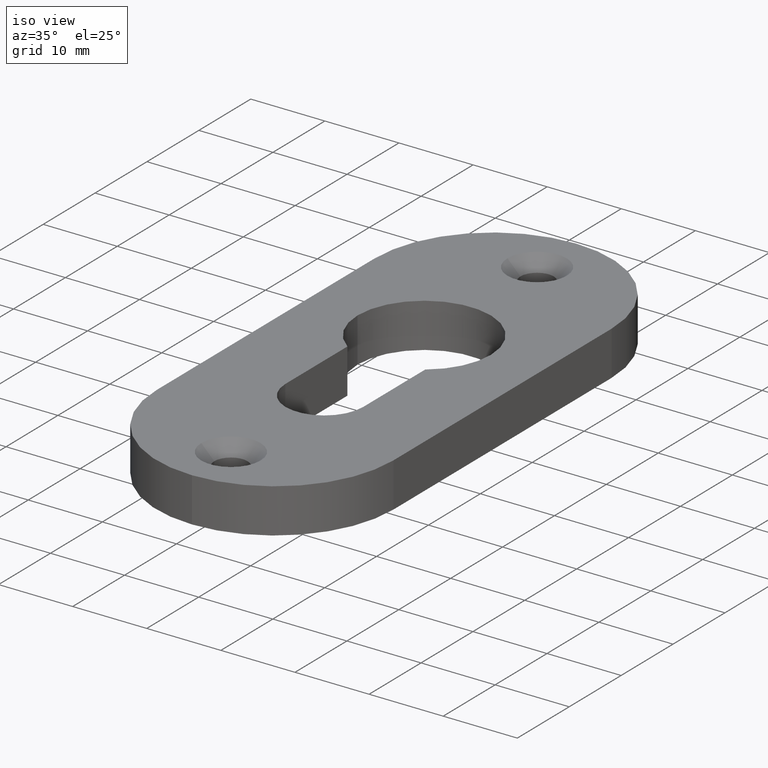
[diagram: clean part render]
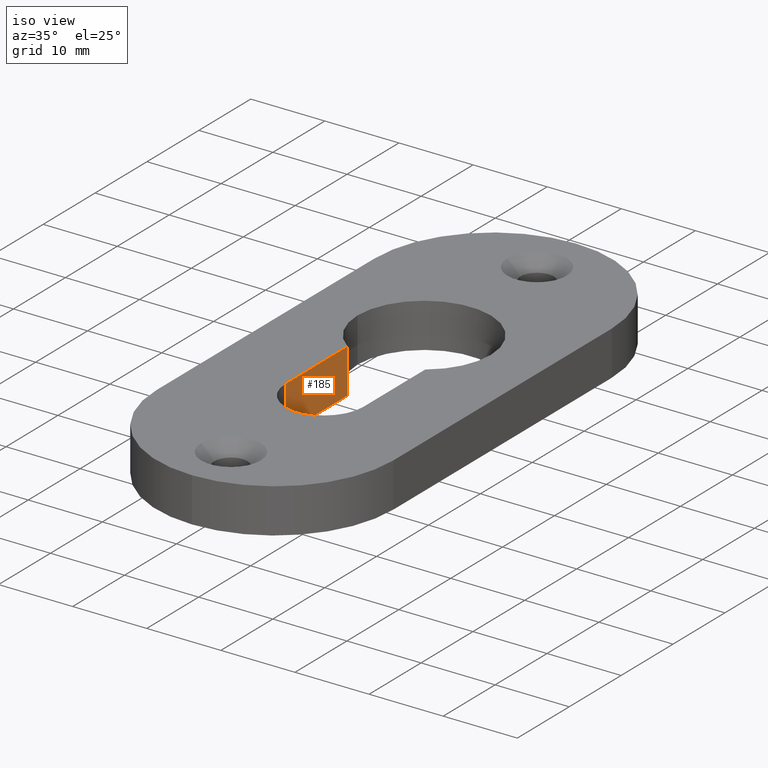
[diagram: same view with one face highlighted and labeled with its STEP entity id]
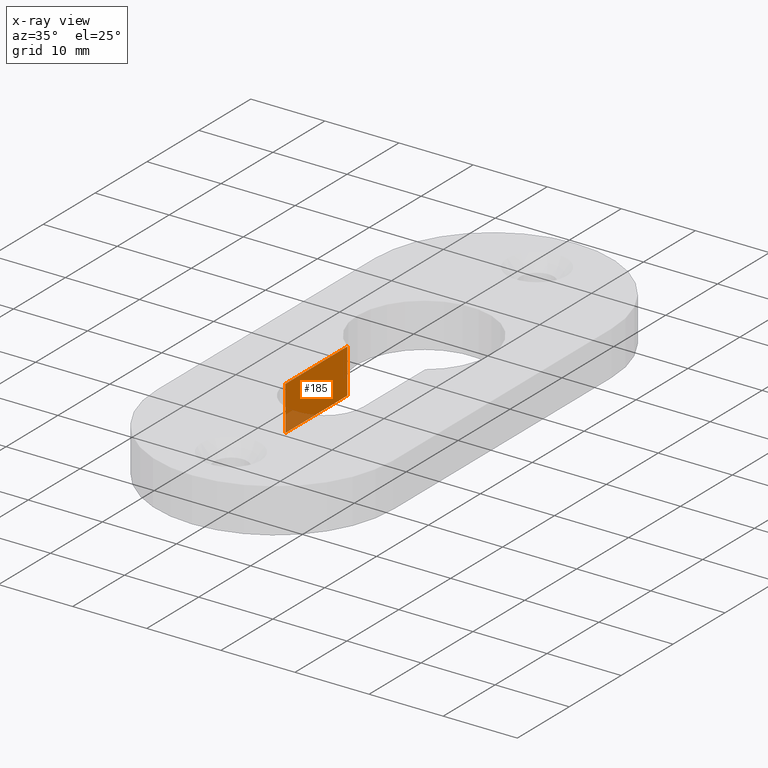
[diagram: x-ray of the same camera — body ghosted, the highlighted face saturated]
A machine part, iso view. The second image highlights one B-rep face of the part: STEP entity #185.
The next image is the same camera in x-ray: the body ghosted, the highlighted face saturated — about 11% of this face is hidden behind the body in this view.
In plain terms, the highlighted planar face has unit normal (1, -0, 0).
Its self-contained STEP definition (entity closure, byte-faithful):
#151 = EDGE_CURVE ( 'NONE', #5519, #3846, #1414, .T. ) ;
#185 = ADVANCED_FACE ( 'NONE', ( #10464 ), #6439, .T. ) ;
#1191 = ORIENTED_EDGE ( 'NONE', *, *, #151, .F. ) ;
#1414 = LINE ( 'NONE', #8875, #4718 ) ;
#1479 = LINE ( 'NONE', #3137, #8104 ) ;
#3100 = DIRECTION ( 'NONE',  ( 1.452878884876534100E-016, 1.000000000000000000, 0.0000000000000000000 ) ) ;
#3130 = DIRECTION ( 'NONE',  ( 1.000000000000000000, -1.452878884876534100E-016, 0.0000000000000000000 ) ) ;
#3137 = CARTESIAN_POINT ( 'NONE',  ( -5.250000000000001800, -11.50000000000000200, 6.000000000000000000 ) ) ;
#3364 = LINE ( 'NONE', #5262, #4915 ) ;
#3521 = ORIENTED_EDGE ( 'NONE', *, *, #7351, .T. ) ;
#3658 = EDGE_LOOP ( 'NONE', ( #1191, #6788, #3521, #6923 ) ) ;
#3846 = VERTEX_POINT ( 'NONE', #5914 ) ;
#4037 = LINE ( 'NONE', #9586, #6468 ) ;
#4718 = VECTOR ( 'NONE', #9726, 1000.000000000000000 ) ;
#4873 = DIRECTION ( 'NONE',  ( -1.452878884876534100E-016, -1.000000000000000000, -0.0000000000000000000 ) ) ;
#4915 = VECTOR ( 'NONE', #10245, 1000.000000000000000 ) ;
#5262 = CARTESIAN_POINT ( 'NONE',  ( -5.250000000000001800, -11.50000000000000200, 6.000000000000000000 ) ) ;
#5519 = VERTEX_POINT ( 'NONE', #10162 ) ;
#5706 = EDGE_CURVE ( 'NONE', #9563, #5519, #4037, .T. ) ;
#5914 = CARTESIAN_POINT ( 'NONE',  ( -5.250000000000001800, -11.50000000000000200, 0.0000000000000000000 ) ) ;
#6403 = CARTESIAN_POINT ( 'NONE',  ( -5.250000000000001800, -11.50000000000000200, 6.000000000000000000 ) ) ;
#6439 = PLANE ( 'NONE',  #9556 ) ;
#6468 = VECTOR ( 'NONE', #10403, 1000.000000000000000 ) ;
#6571 = CARTESIAN_POINT ( 'NONE',  ( -5.250000000000001800, -11.50000000000000200, 6.000000000000000000 ) ) ;
#6788 = ORIENTED_EDGE ( 'NONE', *, *, #5706, .F. ) ;
#6923 = ORIENTED_EDGE ( 'NONE', *, *, #9602, .T. ) ;
#7000 = VERTEX_POINT ( 'NONE', #6571 ) ;
#7351 = EDGE_CURVE ( 'NONE', #9563, #7000, #1479, .T. ) ;
#8104 = VECTOR ( 'NONE', #4873, 1000.000000000000000 ) ;
#8623 = CARTESIAN_POINT ( 'NONE',  ( -5.250000000000000000, 0.4399042413932808800, 6.000000000000000000 ) ) ;
#8875 = CARTESIAN_POINT ( 'NONE',  ( -5.250000000000001800, -11.50000000000000200, 0.0000000000000000000 ) ) ;
#9556 = AXIS2_PLACEMENT_3D ( 'NONE', #6403, #3130, #3100 ) ;
#9563 = VERTEX_POINT ( 'NONE', #8623 ) ;
#9586 = CARTESIAN_POINT ( 'NONE',  ( -5.250000000000000000, 0.4399042413932808800, 6.000000000000000000 ) ) ;
#9602 = EDGE_CURVE ( 'NONE', #7000, #3846, #3364, .T. ) ;
#9726 = DIRECTION ( 'NONE',  ( -1.452878884876534100E-016, -1.000000000000000000, -0.0000000000000000000 ) ) ;
#10162 = CARTESIAN_POINT ( 'NONE',  ( -5.250000000000000000, 0.4399042413932808800, 0.0000000000000000000 ) ) ;
#10245 = DIRECTION ( 'NONE',  ( -0.0000000000000000000, -0.0000000000000000000, -1.000000000000000000 ) ) ;
#10403 = DIRECTION ( 'NONE',  ( -0.0000000000000000000, -0.0000000000000000000, -1.000000000000000000 ) ) ;
#10464 = FACE_OUTER_BOUND ( 'NONE', #3658, .T. ) ;